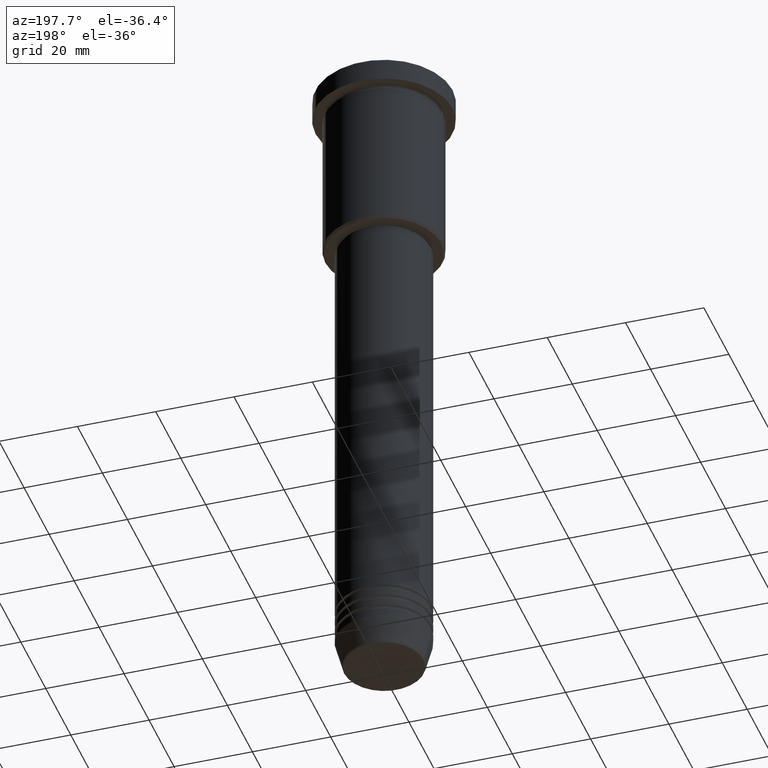
[diagram: clean part render]
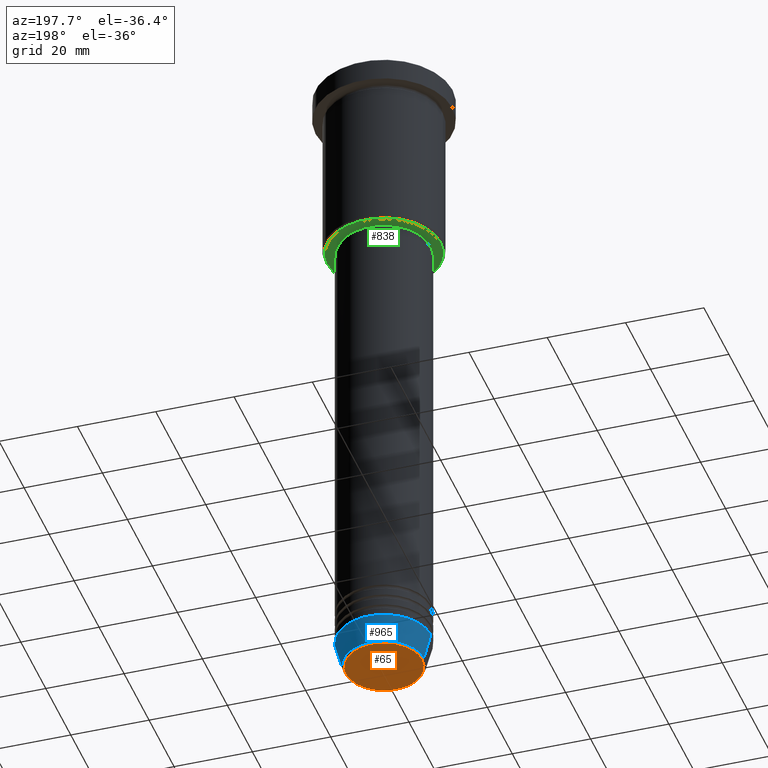
[diagram: same view with three faces highlighted in distinct colors, each labeled with its STEP entity id]
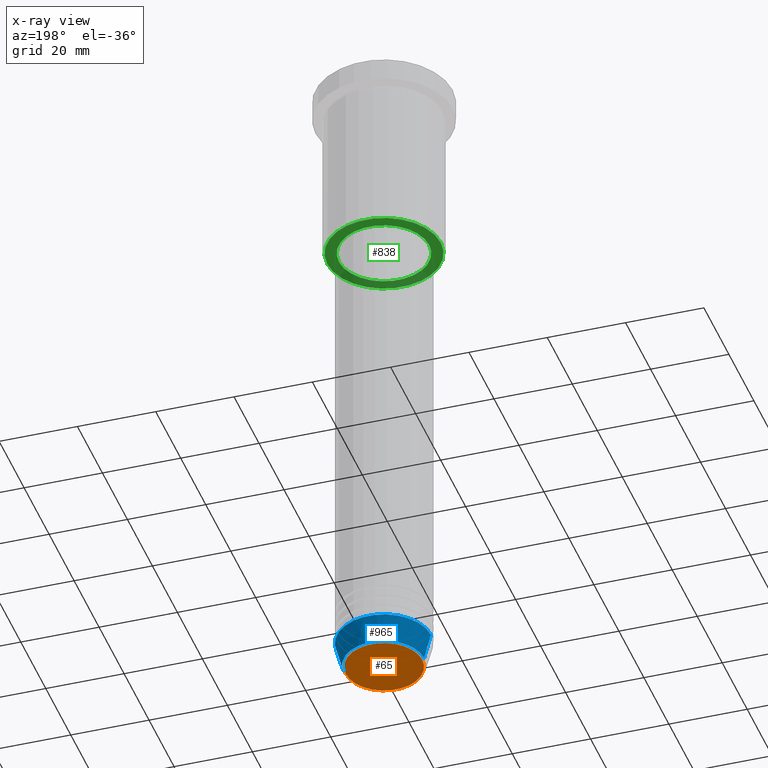
[diagram: x-ray of the same camera — body ghosted, the three highlighted faces saturated]
A machine part, auxiliary view with three faces highlighted in distinct colors.
The next image is the same camera in x-ray (body ghosted, the three faces saturated) — at least one of them is partly hidden behind the body in this view.
Their STEP definitions:

[orange] entity #65 — the highlighted planar face has unit normal (0, -0, 1).
#59 = CARTESIAN_POINT ( 'NONE',  ( -9.740692158992667160, 1.222463696683475393E-15, -170.9999999999999716 ) ) ;
#65 = ADVANCED_FACE ( 'NONE', ( #1138 ), #1049, .F. ) ;
#128 = ORIENTED_EDGE ( 'NONE', *, *, #439, .T. ) ;
#142 = DIRECTION ( 'NONE',  ( 1.000000000000000000, 0.000000000000000000, 0.000000000000000000 ) ) ;
#232 = CARTESIAN_POINT ( 'NONE',  ( 0.000000000000000000, 0.000000000000000000, -170.9999999999999716 ) ) ;
#239 = CARTESIAN_POINT ( 'NONE',  ( 0.000000000000000000, 0.000000000000000000, -170.9999999999999716 ) ) ;
#308 = DIRECTION ( 'NONE',  ( 0.000000000000000000, 0.000000000000000000, -1.000000000000000000 ) ) ;
#387 = DIRECTION ( 'NONE',  ( 0.000000000000000000, -0.000000000000000000, 1.000000000000000000 ) ) ;
#439 = EDGE_CURVE ( 'NONE', #983, #713, #1061, .T. ) ;
#507 = CIRCLE ( 'NONE', #643, 9.740692158992667160 ) ;
#643 = AXIS2_PLACEMENT_3D ( 'NONE', #1137, #308, #679 ) ;
#679 = DIRECTION ( 'NONE',  ( 1.000000000000000000, 0.000000000000000000, 0.000000000000000000 ) ) ;
#699 = DIRECTION ( 'NONE',  ( 0.000000000000000000, 0.000000000000000000, -1.000000000000000000 ) ) ;
#713 = VERTEX_POINT ( 'NONE', #901 ) ;
#718 = EDGE_CURVE ( 'NONE', #713, #983, #507, .T. ) ;
#799 = EDGE_LOOP ( 'NONE', ( #888, #128 ) ) ;
#860 = DIRECTION ( 'NONE',  ( 1.000000000000000000, 0.000000000000000000, 0.000000000000000000 ) ) ;
#888 = ORIENTED_EDGE ( 'NONE', *, *, #718, .T. ) ;
#901 = CARTESIAN_POINT ( 'NONE',  ( 9.740692158992667160, 0.000000000000000000, -170.9999999999999716 ) ) ;
#908 = AXIS2_PLACEMENT_3D ( 'NONE', #232, #387, #860 ) ;
#983 = VERTEX_POINT ( 'NONE', #59 ) ;
#1049 = PLANE ( 'NONE',  #908 ) ;
#1061 = CIRCLE ( 'NONE', #1174, 9.740692158992667160 ) ;
#1137 = CARTESIAN_POINT ( 'NONE',  ( 0.000000000000000000, 0.000000000000000000, -170.9999999999999716 ) ) ;
#1138 = FACE_OUTER_BOUND ( 'NONE', #799, .T. ) ;
#1174 = AXIS2_PLACEMENT_3D ( 'NONE', #239, #699, #142 ) ;

[blue] entity #965 — the highlighted conical surface has half-angle 15 deg.
#64 = ORIENTED_EDGE ( 'NONE', *, *, #199, .T. ) ;
#100 = CARTESIAN_POINT ( 'NONE',  ( 10.22365507213719660, 0.000000000000000000, -170.6294095225512706 ) ) ;
#112 = DIRECTION ( 'NONE',  ( -0.2588190451025213501, 3.169619151431772337E-17, 0.9659258262890680902 ) ) ;
#113 = AXIS2_PLACEMENT_3D ( 'NONE', #652, #560, #1110 ) ;
#150 = CARTESIAN_POINT ( 'NONE',  ( -10.22365507213719837, 1.360806402472383336E-15, -170.6294095225512706 ) ) ;
#175 = CARTESIAN_POINT ( 'NONE',  ( 0.000000000000000000, 0.000000000000000000, -164.0000000000000000 ) ) ;
#178 = AXIS2_PLACEMENT_3D ( 'NONE', #808, #631, #342 ) ;
#197 = ORIENTED_EDGE ( 'NONE', *, *, #880, .F. ) ;
#199 = EDGE_CURVE ( 'NONE', #836, #849, #760, .T. ) ;
#209 = CARTESIAN_POINT ( 'NONE',  ( -12.00000000000000000, 1.469576158976823947E-15, -164.0000000000000000 ) ) ;
#294 = ORIENTED_EDGE ( 'NONE', *, *, #823, .T. ) ;
#342 = DIRECTION ( 'NONE',  ( 1.000000000000000000, 0.000000000000000000, 0.000000000000000000 ) ) ;
#376 = VERTEX_POINT ( 'NONE', #742 ) ;
#393 = EDGE_LOOP ( 'NONE', ( #64, #294, #197, #807 ) ) ;
#472 = EDGE_CURVE ( 'NONE', #836, #376, #771, .T. ) ;
#522 = DIRECTION ( 'NONE',  ( 1.000000000000000000, 0.000000000000000000, 0.000000000000000000 ) ) ;
#524 = CARTESIAN_POINT ( 'NONE',  ( -12.00000000000000000, 1.469576158976823947E-15, -164.0000000000000000 ) ) ;
#560 = DIRECTION ( 'NONE',  ( -0.000000000000000000, -0.000000000000000000, 1.000000000000000000 ) ) ;
#631 = DIRECTION ( 'NONE',  ( -0.000000000000000000, -0.000000000000000000, 1.000000000000000000 ) ) ;
#652 = CARTESIAN_POINT ( 'NONE',  ( 0.000000000000000000, 0.000000000000000000, -170.6294095225512706 ) ) ;
#670 = CONICAL_SURFACE ( 'NONE', #178, 12.00000000000000000, 0.2617993877991500740 ) ;
#707 = AXIS2_PLACEMENT_3D ( 'NONE', #175, #882, #522 ) ;
#742 = CARTESIAN_POINT ( 'NONE',  ( 12.00000000000000000, 0.000000000000000000, -164.0000000000000000 ) ) ;
#760 = CIRCLE ( 'NONE', #113, 10.22365507213719660 ) ;
#771 = LINE ( 'NONE', #1050, #1064 ) ;
#807 = ORIENTED_EDGE ( 'NONE', *, *, #472, .F. ) ;
#808 = CARTESIAN_POINT ( 'NONE',  ( 0.000000000000000000, 0.000000000000000000, -164.0000000000000000 ) ) ;
#814 = VECTOR ( 'NONE', #112, 1000.000000000000000 ) ;
#823 = EDGE_CURVE ( 'NONE', #849, #1038, #1181, .T. ) ;
#836 = VERTEX_POINT ( 'NONE', #100 ) ;
#849 = VERTEX_POINT ( 'NONE', #150 ) ;
#867 = DIRECTION ( 'NONE',  ( 0.2588190451025213501, 0.000000000000000000, 0.9659258262890680902 ) ) ;
#871 = FACE_OUTER_BOUND ( 'NONE', #393, .T. ) ;
#880 = EDGE_CURVE ( 'NONE', #376, #1038, #1101, .T. ) ;
#882 = DIRECTION ( 'NONE',  ( -0.000000000000000000, -0.000000000000000000, 1.000000000000000000 ) ) ;
#965 = ADVANCED_FACE ( 'NONE', ( #871 ), #670, .T. ) ;
#1038 = VERTEX_POINT ( 'NONE', #524 ) ;
#1050 = CARTESIAN_POINT ( 'NONE',  ( 12.00000000000000000, 0.000000000000000000, -164.0000000000000000 ) ) ;
#1064 = VECTOR ( 'NONE', #867, 1000.000000000000000 ) ;
#1101 = CIRCLE ( 'NONE', #707, 12.00000000000000000 ) ;
#1110 = DIRECTION ( 'NONE',  ( 1.000000000000000000, 0.000000000000000000, 0.000000000000000000 ) ) ;
#1181 = LINE ( 'NONE', #209, #814 ) ;

[green] entity #838 — the highlighted planar face has unit normal (0, 0, -1).
#5 = AXIS2_PLACEMENT_3D ( 'NONE', #247, #980, #391 ) ;
#8 = AXIS2_PLACEMENT_3D ( 'NONE', #614, #1073, #978 ) ;
#48 = DIRECTION ( 'NONE',  ( -0.000000000000000000, -0.000000000000000000, 1.000000000000000000 ) ) ;
#101 = VERTEX_POINT ( 'NONE', #417 ) ;
#139 = VERTEX_POINT ( 'NONE', #477 ) ;
#143 = DIRECTION ( 'NONE',  ( -1.000000000000000000, 0.000000000000000000, -0.000000000000000000 ) ) ;
#145 = CARTESIAN_POINT ( 'NONE',  ( 0.000000000000000000, 0.000000000000000000, -46.00000000000000000 ) ) ;
#219 = PLANE ( 'NONE',  #278 ) ;
#229 = EDGE_CURVE ( 'NONE', #101, #139, #704, .T. ) ;
#247 = CARTESIAN_POINT ( 'NONE',  ( 0.000000000000000000, 0.000000000000000000, -46.00000000000000000 ) ) ;
#248 = CIRCLE ( 'NONE', #947, 11.50000000000000000 ) ;
#278 = AXIS2_PLACEMENT_3D ( 'NONE', #774, #592, #143 ) ;
#293 = ORIENTED_EDGE ( 'NONE', *, *, #937, .T. ) ;
#335 = CIRCLE ( 'NONE', #609, 14.49999999999996980 ) ;
#346 = EDGE_CURVE ( 'NONE', #1169, #632, #248, .T. ) ;
#382 = CARTESIAN_POINT ( 'NONE',  ( -11.50000000000000000, 1.408343819019456176E-15, -46.00000000000000000 ) ) ;
#391 = DIRECTION ( 'NONE',  ( -1.000000000000000000, 0.000000000000000000, 0.000000000000000000 ) ) ;
#398 = FACE_OUTER_BOUND ( 'NONE', #1042, .T. ) ;
#417 = CARTESIAN_POINT ( 'NONE',  ( -14.49999999999996980, 1.806354028742344224E-15, -46.00000000000000000 ) ) ;
#476 = ORIENTED_EDGE ( 'NONE', *, *, #229, .T. ) ;
#477 = CARTESIAN_POINT ( 'NONE',  ( 14.49999999999996980, 0.000000000000000000, -46.00000000000000000 ) ) ;
#557 = ORIENTED_EDGE ( 'NONE', *, *, #958, .T. ) ;
#592 = DIRECTION ( 'NONE',  ( 0.000000000000000000, 0.000000000000000000, -1.000000000000000000 ) ) ;
#600 = EDGE_LOOP ( 'NONE', ( #557, #608 ) ) ;
#608 = ORIENTED_EDGE ( 'NONE', *, *, #346, .T. ) ;
#609 = AXIS2_PLACEMENT_3D ( 'NONE', #1033, #1019, #930 ) ;
#614 = CARTESIAN_POINT ( 'NONE',  ( 0.000000000000000000, 0.000000000000000000, -46.00000000000000000 ) ) ;
#632 = VERTEX_POINT ( 'NONE', #810 ) ;
#704 = CIRCLE ( 'NONE', #5, 14.49999999999996980 ) ;
#774 = CARTESIAN_POINT ( 'NONE',  ( 0.000000000000000000, 15.00000000000000000, -46.00000000000000000 ) ) ;
#810 = CARTESIAN_POINT ( 'NONE',  ( 11.50000000000000000, 0.000000000000000000, -46.00000000000000000 ) ) ;
#838 = ADVANCED_FACE ( 'NONE', ( #398, #941 ), #219, .T. ) ;
#930 = DIRECTION ( 'NONE',  ( -1.000000000000000000, 0.000000000000000000, 0.000000000000000000 ) ) ;
#937 = EDGE_CURVE ( 'NONE', #139, #101, #335, .T. ) ;
#941 = FACE_BOUND ( 'NONE', #600, .T. ) ;
#947 = AXIS2_PLACEMENT_3D ( 'NONE', #145, #48, #1145 ) ;
#958 = EDGE_CURVE ( 'NONE', #632, #1169, #972, .T. ) ;
#972 = CIRCLE ( 'NONE', #8, 11.50000000000000000 ) ;
#978 = DIRECTION ( 'NONE',  ( 1.000000000000000000, 0.000000000000000000, 0.000000000000000000 ) ) ;
#980 = DIRECTION ( 'NONE',  ( 0.000000000000000000, 0.000000000000000000, -1.000000000000000000 ) ) ;
#1019 = DIRECTION ( 'NONE',  ( 0.000000000000000000, 0.000000000000000000, -1.000000000000000000 ) ) ;
#1033 = CARTESIAN_POINT ( 'NONE',  ( 0.000000000000000000, 0.000000000000000000, -46.00000000000000000 ) ) ;
#1042 = EDGE_LOOP ( 'NONE', ( #293, #476 ) ) ;
#1073 = DIRECTION ( 'NONE',  ( -0.000000000000000000, -0.000000000000000000, 1.000000000000000000 ) ) ;
#1145 = DIRECTION ( 'NONE',  ( 1.000000000000000000, 0.000000000000000000, 0.000000000000000000 ) ) ;
#1169 = VERTEX_POINT ( 'NONE', #382 ) ;